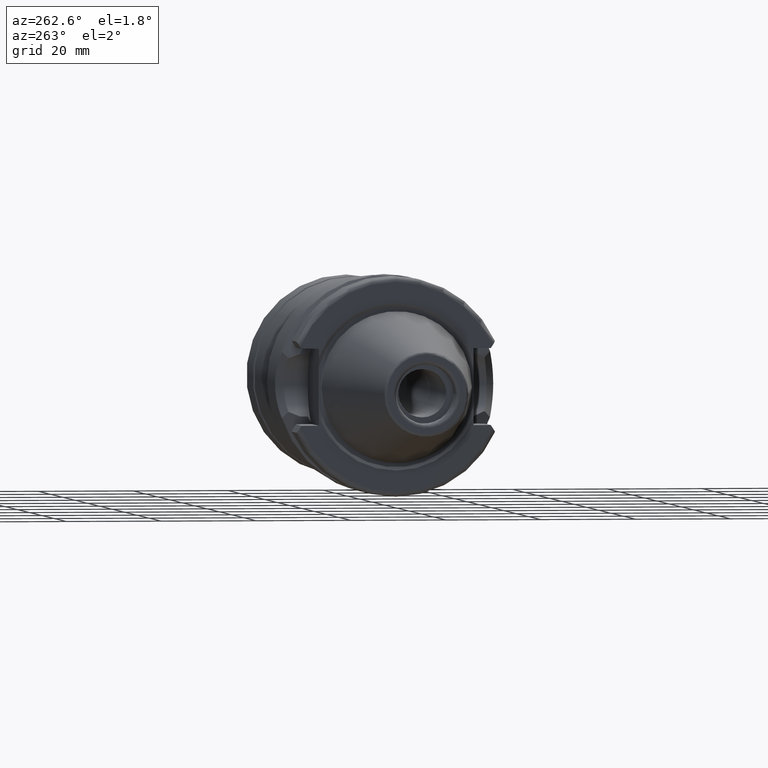
[diagram: clean part render]
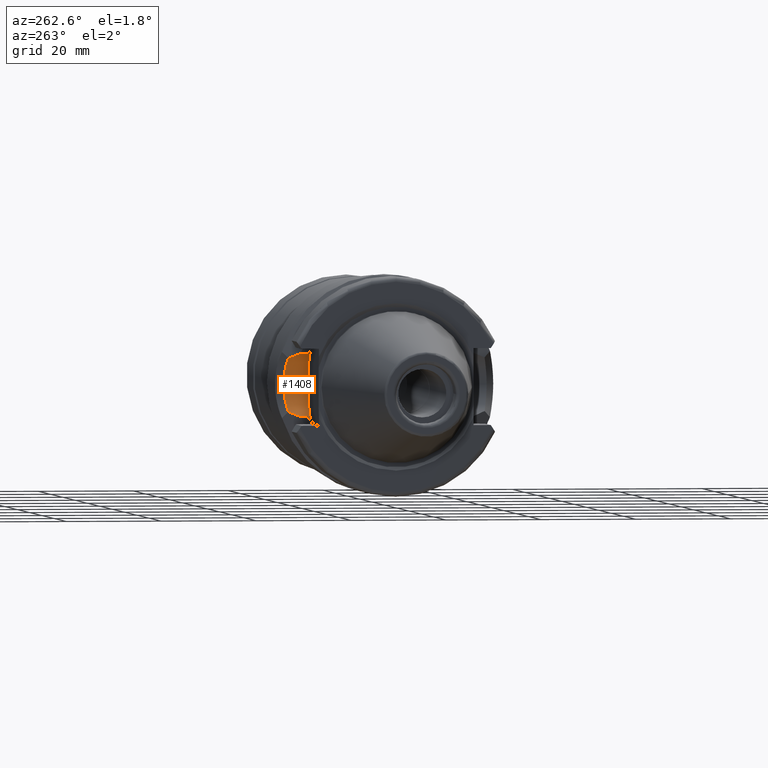
[diagram: same view with one face highlighted and labeled with its STEP entity id]
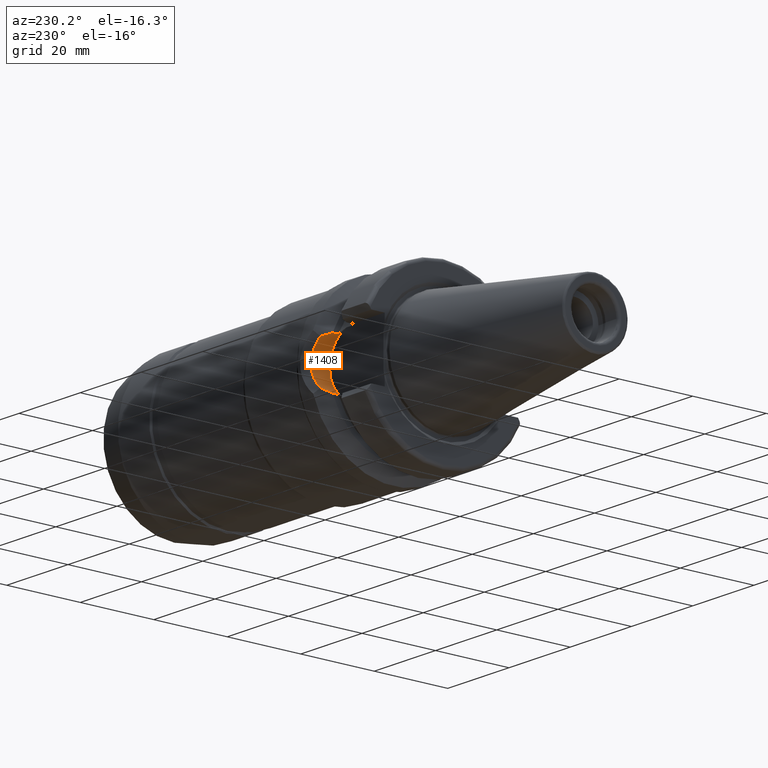
[diagram: same view with one face highlighted and labeled with its STEP entity id]
A machine part, auxiliary view. The second image highlights one B-rep face of the part: STEP entity #1408.
A second angle (auxiliary view) of the same face is appended — the face is thin or edge-on in the first view.
In plain terms, the highlighted cylindrical surface (partial cylindrical patch) has radius 8.05 mm, axis along (0, 1, 0).
Its self-contained STEP definition (entity closure, byte-faithful):
#34=B_SPLINE_CURVE_WITH_KNOTS('',3,(#2341,#2342,#2343,#2344),
 .UNSPECIFIED.,.F.,.F.,(4,4),(3.67578169706455,3.94049819323922),
 .UNSPECIFIED.);
#43=B_SPLINE_CURVE_WITH_KNOTS('',3,(#2548,#2549,#2550,#2551,#2552,#2553,
#2554,#2555,#2556),.UNSPECIFIED.,.F.,.F.,(4,1,1,1,1,1,4),(3.04772368573226,
3.22457067379383,3.5830429423859,3.76227907668193,3.94151521097796,4.120751345274,
4.29760065173264),.UNSPECIFIED.);
#48=B_SPLINE_CURVE_WITH_KNOTS('',3,(#2644,#2645,#2646,#2647,#2648,#2649),
 .UNSPECIFIED.,.F.,.F.,(4,2,4),(2.71612491144291,2.77269082711797,2.94431279974824),
 .UNSPECIFIED.);
#50=B_SPLINE_CURVE_WITH_KNOTS('',3,(#2683,#2684,#2685,#2686,#2687,#2688),
 .UNSPECIFIED.,.F.,.F.,(4,2,4),(4.44885108089522,4.6204730535255,4.67703896920055),
 .UNSPECIFIED.);
#51=B_SPLINE_CURVE_WITH_KNOTS('',3,(#2691,#2692,#2693,#2694),
 .UNSPECIFIED.,.F.,.F.,(4,4),(1.87172696882225,2.13644346499693),
 .UNSPECIFIED.);
#163=FACE_OUTER_BOUND('',#242,.T.);
#242=EDGE_LOOP('',(#1187,#1188,#1189,#1190,#1191,#1192,#1193,#1194));
#319=LINE('',#2638,#389);
#327=LINE('',#2690,#397);
#389=VECTOR('',#1925,10.);
#397=VECTOR('',#1959,10.);
#485=CIRCLE('',#1580,8.05);
#578=VERTEX_POINT('',#2338);
#579=VERTEX_POINT('',#2340);
#611=VERTEX_POINT('',#2534);
#631=VERTEX_POINT('',#2636);
#633=VERTEX_POINT('',#2642);
#641=VERTEX_POINT('',#2680);
#642=VERTEX_POINT('',#2682);
#643=VERTEX_POINT('',#2689);
#752=EDGE_CURVE('',#579,#578,#34,.T.);
#794=EDGE_CURVE('',#579,#611,#43,.T.);
#825=EDGE_CURVE('',#631,#578,#319,.T.);
#828=EDGE_CURVE('',#633,#631,#48,.T.);
#841=EDGE_CURVE('',#641,#633,#485,.T.);
#842=EDGE_CURVE('',#642,#641,#50,.T.);
#843=EDGE_CURVE('',#643,#642,#327,.T.);
#844=EDGE_CURVE('',#643,#611,#51,.T.);
#1187=ORIENTED_EDGE('',*,*,#794,.F.);
#1188=ORIENTED_EDGE('',*,*,#752,.T.);
#1189=ORIENTED_EDGE('',*,*,#825,.F.);
#1190=ORIENTED_EDGE('',*,*,#828,.F.);
#1191=ORIENTED_EDGE('',*,*,#841,.F.);
#1192=ORIENTED_EDGE('',*,*,#842,.F.);
#1193=ORIENTED_EDGE('',*,*,#843,.F.);
#1194=ORIENTED_EDGE('',*,*,#844,.T.);
#1349=CYLINDRICAL_SURFACE('',#1579,8.05);
#1408=ADVANCED_FACE('',(#163),#1349,.F.);
#1579=AXIS2_PLACEMENT_3D('',#2679,#1955,#1956);
#1580=AXIS2_PLACEMENT_3D('',#2681,#1957,#1958);
#1925=DIRECTION('',(0.,1.,0.));
#1955=DIRECTION('center_axis',(0.,1.,0.));
#1956=DIRECTION('ref_axis',(0.,0.,1.));
#1957=DIRECTION('center_axis',(0.,1.,0.));
#1958=DIRECTION('ref_axis',(0.,0.,1.));
#1959=DIRECTION('',(0.,-1.,0.));
#2338=CARTESIAN_POINT('',(15.6,18.3236233917175,-6.57114906237866));
#2340=CARTESIAN_POINT('',(16.726240349216,20.6802183015353,-5.60691960242778));
#2341=CARTESIAN_POINT('Ctrl Pts',(16.726240349216,20.6802183015353,-5.60691960242778));
#2342=CARTESIAN_POINT('Ctrl Pts',(16.3694896442963,19.9371170198428,-5.97444365529211));
#2343=CARTESIAN_POINT('Ctrl Pts',(15.9901190646182,19.1440967231986,-6.29508567783907));
#2344=CARTESIAN_POINT('Ctrl Pts',(15.6,18.3236233917175,-6.57114906237866));
#2534=CARTESIAN_POINT('',(16.726240349216,20.6802183015353,5.60691960242777));
#2548=CARTESIAN_POINT('Ctrl Pts',(16.7262419910533,20.6802191138808,-5.60692140146247));
#2549=CARTESIAN_POINT('Ctrl Pts',(17.1497485012892,20.7901162605597,-5.17079683730033));
#2550=CARTESIAN_POINT('Ctrl Pts',(18.2662874405047,21.1214044311936,-3.74061536505137));
#2551=CARTESIAN_POINT('Ctrl Pts',(19.0203010508337,21.4089056923646,-1.39200392581052));
#2552=CARTESIAN_POINT('Ctrl Pts',(19.0152852407043,21.4053147723941,0.831869981131076));
#2553=CARTESIAN_POINT('Ctrl Pts',(18.6497079179836,21.269201221836,2.57630191458261));
#2554=CARTESIAN_POINT('Ctrl Pts',(17.8870213991014,21.0070614439998,4.21227906715596));
#2555=CARTESIAN_POINT('Ctrl Pts',(17.1500840051095,20.7901757486856,5.17028578930719));
#2556=CARTESIAN_POINT('Ctrl Pts',(16.7262404606376,20.6802181668576,5.6069196766696));
#2636=CARTESIAN_POINT('',(15.6,16.757684804292,-6.57114906237866));
#2638=CARTESIAN_POINT('',(15.6,16.3,-6.57114906237866));
#2642=CARTESIAN_POINT('',(13.4980384612482,16.3,-7.636098480245));
#2644=CARTESIAN_POINT('Ctrl Pts',(13.4980384612482,16.3,-7.636098480245));
#2645=CARTESIAN_POINT('Ctrl Pts',(13.6847796623189,16.329191641879,-7.57378606195196));
#2646=CARTESIAN_POINT('Ctrl Pts',(13.8692695970121,16.3611703468843,-7.5045998651608));
#2647=CARTESIAN_POINT('Ctrl Pts',(14.6012065414299,16.4995936761885,-7.19909968210666));
#2648=CARTESIAN_POINT('Ctrl Pts',(15.1240022455652,16.6256027426009,-6.90798353944051));
#2649=CARTESIAN_POINT('Ctrl Pts',(15.6,16.757684804292,-6.57114906237866));
#2679=CARTESIAN_POINT('Origin',(10.95,16.3,0.));
#2680=CARTESIAN_POINT('',(13.4980384612482,16.3,7.636098480245));
#2681=CARTESIAN_POINT('Origin',(10.95,16.3,0.));
#2682=CARTESIAN_POINT('',(15.6,16.757684804292,6.57114906237866));
#2683=CARTESIAN_POINT('Ctrl Pts',(15.6,16.757684804292,6.57114906237866));
#2684=CARTESIAN_POINT('Ctrl Pts',(15.1240022455652,16.6256027426009,6.90798353944051));
#2685=CARTESIAN_POINT('Ctrl Pts',(14.6012065414299,16.4995936761885,7.19909968210666));
#2686=CARTESIAN_POINT('Ctrl Pts',(13.8692695970121,16.3611703468843,7.5045998651608));
#2687=CARTESIAN_POINT('Ctrl Pts',(13.6847796623189,16.329191641879,7.57378606195196));
#2688=CARTESIAN_POINT('Ctrl Pts',(13.4980384612482,16.3,7.636098480245));
#2689=CARTESIAN_POINT('',(15.6,18.3236233917175,6.57114906237866));
#2690=CARTESIAN_POINT('',(15.6,16.3,6.57114906237866));
#2691=CARTESIAN_POINT('Ctrl Pts',(15.6,18.3236233917175,6.57114906237866));
#2692=CARTESIAN_POINT('Ctrl Pts',(15.9901190646181,19.1440967231986,6.29508567783907));
#2693=CARTESIAN_POINT('Ctrl Pts',(16.3694896442963,19.9371170198428,5.97444365529211));
#2694=CARTESIAN_POINT('Ctrl Pts',(16.726240349216,20.6802183015353,5.60691960242777));